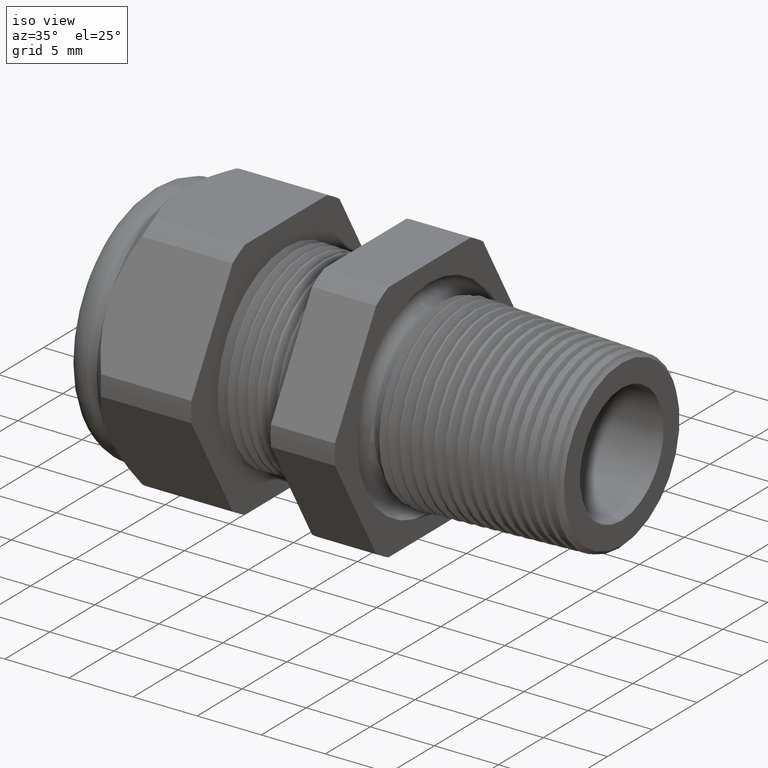
[diagram: clean part render]
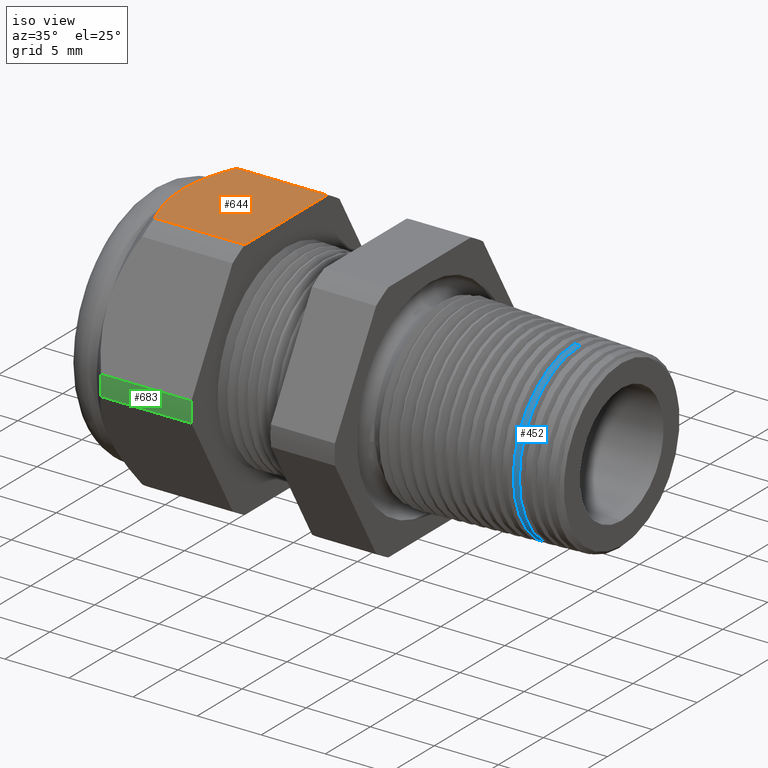
[diagram: same view with three faces highlighted in distinct colors, each labeled with its STEP entity id]
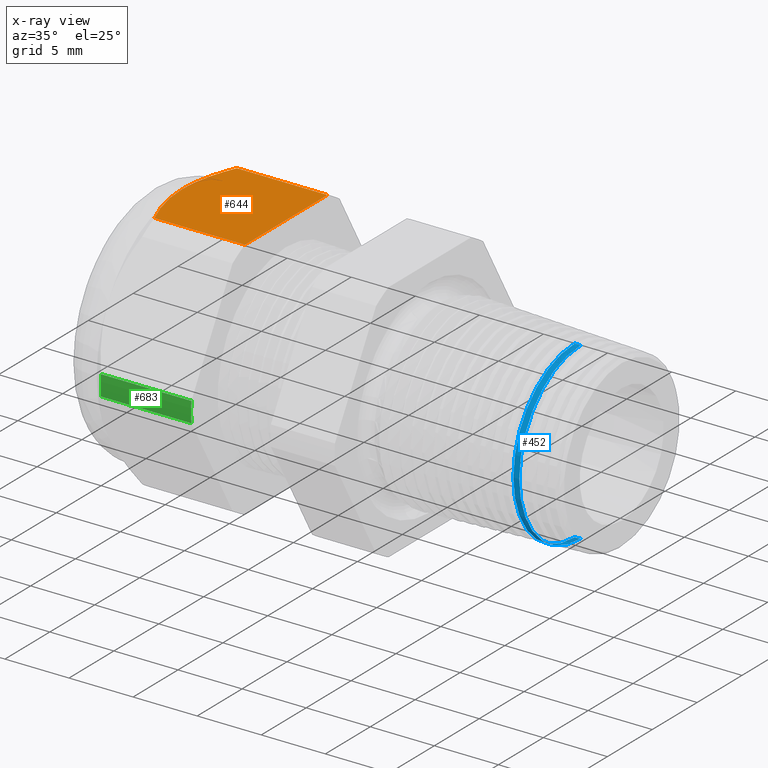
[diagram: x-ray of the same camera — body ghosted, the three highlighted faces saturated]
A machine part, iso view with three faces highlighted in distinct colors.
The next image is the same camera in x-ray (body ghosted, the three faces saturated) — at least one of them is partly hidden behind the body in this view.
Their STEP definitions:

[orange] entity #644 — the highlighted planar face has unit normal (0, 0, 1).
#7 = VERTEX_POINT ( 'NONE', #1895 ) ;
#622 = ORIENTED_EDGE ( 'NONE', *, *, #623, .T. ) ;
#623 = EDGE_CURVE ( 'NONE', #7, #624, #3085, .T. ) ;
#624 = VERTEX_POINT ( 'NONE', #3084 ) ;
#625 = ORIENTED_EDGE ( 'NONE', *, *, #626, .F. ) ;
#626 = EDGE_CURVE ( 'NONE', #627, #624, #3134, .T. ) ;
#627 = VERTEX_POINT ( 'NONE', #3130 ) ;
#628 = ORIENTED_EDGE ( 'NONE', *, *, #629, .F. ) ;
#629 = EDGE_CURVE ( 'NONE', #641, #627, #3129, .T. ) ;
#638 = VERTEX_POINT ( 'NONE', #3108 ) ;
#640 = EDGE_CURVE ( 'NONE', #641, #638, #3168, .T. ) ;
#641 = VERTEX_POINT ( 'NONE', #3164 ) ;
#644 = ADVANCED_FACE ( 'NONE', ( #3158 ), #3157, .T. ) ;
#645 = EDGE_LOOP ( 'NONE', ( #646, #647, #622, #625, #628 ) ) ;
#646 = ORIENTED_EDGE ( 'NONE', *, *, #640, .T. ) ;
#647 = ORIENTED_EDGE ( 'NONE', *, *, #648, .T. ) ;
#648 = EDGE_CURVE ( 'NONE', #638, #7, #3152, .T. ) ;
#1895 = CARTESIAN_POINT ( 'NONE',  ( -1.069763779527559200, 0.0000000000000000000, 0.3749999999999999400 ) ) ;
#3084 = CARTESIAN_POINT ( 'NONE',  ( -1.028513779527559200, -0.1806628420566886700, 0.3749999999999999400 ) ) ;
#3085 = B_SPLINE_CURVE_WITH_KNOTS ( 'NONE', 3,
 ( #3140, #3139, #3138, #3137, #3136, #3135 ),
 .UNSPECIFIED., .F., .F.,
 ( 4, 2, 4 ),
 ( 0.01191928708821687900, 0.01426783552382355200, 0.01661638395943022500 ),
 .UNSPECIFIED. ) ;
#3108 = CARTESIAN_POINT ( 'NONE',  ( -1.028513779527559200, 0.1806628420566886700, 0.3749999999999999400 ) ) ;
#3126 = DIRECTION ( 'NONE',  ( 0.0000000000000000000, -1.000000000000000000, 0.0000000000000000000 ) ) ;
#3127 = VECTOR ( 'NONE', #3126, 39.37007874015748100 ) ;
#3128 = CARTESIAN_POINT ( 'NONE',  ( -0.7508661417322833900, 0.2999999999999999900, 0.3749999999999999400 ) ) ;
#3129 = LINE ( 'NONE', #3128, #3127 ) ;
#3130 = CARTESIAN_POINT ( 'NONE',  ( -0.7508661417322833900, -0.1806628420566886700, 0.3749999999999999400 ) ) ;
#3131 = DIRECTION ( 'NONE',  ( -1.000000000000000000, 0.0000000000000000000, 0.0000000000000000000 ) ) ;
#3132 = VECTOR ( 'NONE', #3131, 39.37007874015748100 ) ;
#3133 = CARTESIAN_POINT ( 'NONE',  ( 0.2800000000000000300, -0.1806628420566886700, 0.3749999999999999400 ) ) ;
#3134 = LINE ( 'NONE', #3133, #3132 ) ;
#3135 = CARTESIAN_POINT ( 'NONE',  ( -1.028513779527559200, -0.1806628420566886700, 0.3749999999999999400 ) ) ;
#3136 = CARTESIAN_POINT ( 'NONE',  ( -1.040864619919063900, -0.1522063135617434400, 0.3749999999999998900 ) ) ;
#3137 = CARTESIAN_POINT ( 'NONE',  ( -1.051374803848830600, -0.1224209746056500500, 0.3750000000000001100 ) ) ;
#3138 = CARTESIAN_POINT ( 'NONE',  ( -1.065781561248279700, -0.06212512060126275400, 0.3750000000000000600 ) ) ;
#3139 = CARTESIAN_POINT ( 'NONE',  ( -1.069763779527559200, -0.03141195411055334300, 0.3750000000000000600 ) ) ;
#3140 = CARTESIAN_POINT ( 'NONE',  ( -1.069763779527559200, 0.0000000000000000000, 0.3749999999999999400 ) ) ;
#3142 = CARTESIAN_POINT ( 'NONE',  ( -1.069763779527559200, 0.0000000000000000000, 0.3749999999999999400 ) ) ;
#3143 = CARTESIAN_POINT ( 'NONE',  ( -1.069763779527559200, 0.01568637131276644200, 0.3749999999999999400 ) ) ;
#3144 = CARTESIAN_POINT ( 'NONE',  ( -1.068769479952294000, 0.03130286613836864900, 0.3749999999999999400 ) ) ;
#3145 = CARTESIAN_POINT ( 'NONE',  ( -1.064967165678735200, 0.06207756443688124800, 0.3749999999999999400 ) ) ;
#3146 = CARTESIAN_POINT ( 'NONE',  ( -1.062160678549065400, 0.07729185397029274300, 0.3749999999999999400 ) ) ;
#3147 = CARTESIAN_POINT ( 'NONE',  ( -1.051355067212263600, 0.1224785947535364200, 0.3749999999999998300 ) ) ;
#3148 = CARTESIAN_POINT ( 'NONE',  ( -1.040859887633265100, 0.1522172168218790500, 0.3749999999999998900 ) ) ;
#3149 = CARTESIAN_POINT ( 'NONE',  ( -1.028513779527559200, 0.1806628420566886700, 0.3749999999999999400 ) ) ;
#3152 = B_SPLINE_CURVE_WITH_KNOTS ( 'NONE', 3,
 ( #3149, #3148, #3147, #3146, #3145, #3144, #3143, #3142 ),
 .UNSPECIFIED., .F., .F.,
 ( 4, 2, 2, 4 ),
 ( 0.007228053594460295100, 0.009573670341338587000, 0.01074647871477773400, 0.01191928708821687900 ),
 .UNSPECIFIED. ) ;
#3153 = DIRECTION ( 'NONE',  ( 1.000000000000000000, 0.0000000000000000000, 0.0000000000000000000 ) ) ;
#3154 = DIRECTION ( 'NONE',  ( 0.0000000000000000000, 0.0000000000000000000, 1.000000000000000000 ) ) ;
#3155 = CARTESIAN_POINT ( 'NONE',  ( 0.2800000000000000300, -0.1806628420566887000, 0.3749999999999999400 ) ) ;
#3156 = AXIS2_PLACEMENT_3D ( 'NONE', #3155, #3154, #3153 ) ;
#3157 = PLANE ( 'NONE',  #3156 ) ;
#3158 = FACE_OUTER_BOUND ( 'NONE', #645, .T. ) ;
#3164 = CARTESIAN_POINT ( 'NONE',  ( -0.7508661417322833900, 0.1806628420566887000, 0.3749999999999999400 ) ) ;
#3165 = DIRECTION ( 'NONE',  ( -1.000000000000000000, 0.0000000000000000000, 0.0000000000000000000 ) ) ;
#3166 = VECTOR ( 'NONE', #3165, 39.37007874015748100 ) ;
#3167 = CARTESIAN_POINT ( 'NONE',  ( 0.2800000000000000300, 0.1806628420566887000, 0.3749999999999999400 ) ) ;
#3168 = LINE ( 'NONE', #3167, #3166 ) ;

[blue] entity #452 — the highlighted conical surface has half-angle 2 deg.
#391 = EDGE_CURVE ( 'NONE', #1833, #1873, #2674, .T. ) ;
#394 = EDGE_CURVE ( 'NONE', #1842, #1329, #2670, .T. ) ;
#429 = ORIENTED_EDGE ( 'NONE', *, *, #391, .F. ) ;
#430 = ORIENTED_EDGE ( 'NONE', *, *, #431, .F. ) ;
#431 = EDGE_CURVE ( 'NONE', #1842, #1833, #2725, .T. ) ;
#432 = ORIENTED_EDGE ( 'NONE', *, *, #394, .T. ) ;
#433 = ORIENTED_EDGE ( 'NONE', *, *, #434, .F. ) ;
#434 = EDGE_CURVE ( 'NONE', #1873, #1329, #2721, .T. ) ;
#452 = ADVANCED_FACE ( 'NONE', ( #2748 ), #2747, .T. ) ;
#453 = EDGE_LOOP ( 'NONE', ( #429, #430, #432, #433 ) ) ;
#1329 = VERTEX_POINT ( 'NONE', #4244 ) ;
#1833 = VERTEX_POINT ( 'NONE', #5109 ) ;
#1842 = VERTEX_POINT ( 'NONE', #5153 ) ;
#1873 = VERTEX_POINT ( 'NONE', #5223 ) ;
#2667 = DIRECTION ( 'NONE',  ( -0.9993908270190959800, 0.0000000000000000000, 0.03489949670249371100 ) ) ;
#2668 = VECTOR ( 'NONE', #2667, 39.37007874015748100 ) ;
#2669 = CARTESIAN_POINT ( 'NONE',  ( 0.2799999999999999700, 0.0000000000000000000, 0.2640013610877269800 ) ) ;
#2670 = LINE ( 'NONE', #2669, #2668 ) ;
#2671 = DIRECTION ( 'NONE',  ( -0.9993908270190959800, 4.273955692856252800E-018, -0.03489949670249371100 ) ) ;
#2672 = VECTOR ( 'NONE', #2671, 39.37007874015748100 ) ;
#2673 = CARTESIAN_POINT ( 'NONE',  ( 0.2799999999999999700, 3.233084218266294700E-017, -0.2640013610877269800 ) ) ;
#2674 = LINE ( 'NONE', #2673, #2672 ) ;
#2717 = DIRECTION ( 'NONE',  ( 0.0000000000000000000, 0.0000000000000000000, -1.000000000000000000 ) ) ;
#2718 = DIRECTION ( 'NONE',  ( -1.000000000000000000, 0.0000000000000000000, 0.0000000000000000000 ) ) ;
#2719 = CARTESIAN_POINT ( 'NONE',  ( 0.1356508413671558000, 0.0000000000000000000, 0.0000000000000000000 ) ) ;
#2720 = AXIS2_PLACEMENT_3D ( 'NONE', #2719, #2718, #2717 ) ;
#2721 = CIRCLE ( 'NONE', #2720, 0.2690421447826712400 ) ;
#2722 = DIRECTION ( 'NONE',  ( 0.0000000000000000000, 0.0000000000000000000, 1.000000000000000000 ) ) ;
#2723 = DIRECTION ( 'NONE',  ( 1.000000000000000000, 0.0000000000000000000, 0.0000000000000000000 ) ) ;
#2724 = AXIS2_PLACEMENT_3D ( 'NONE', #2730, #2723, #2722 ) ;
#2725 = CIRCLE ( 'NONE', #2724, 0.2684150621668731100 ) ;
#2730 = CARTESIAN_POINT ( 'NONE',  ( 0.1536081379824684700, 0.0000000000000000000, 0.0000000000000000000 ) ) ;
#2742 = DIRECTION ( 'NONE',  ( 0.0000000000000000000, 0.0000000000000000000, 1.000000000000000000 ) ) ;
#2743 = DIRECTION ( 'NONE',  ( -1.000000000000000000, 0.0000000000000000000, 0.0000000000000000000 ) ) ;
#2744 = CARTESIAN_POINT ( 'NONE',  ( 0.2799999999999999700, 0.0000000000000000000, 0.0000000000000000000 ) ) ;
#2745 = AXIS2_PLACEMENT_3D ( 'NONE', #2744, #2743, #2742 ) ;
#2747 = CONICAL_SURFACE ( 'NONE', #2745, 0.2640013610877269800, 0.03490658503987932600 ) ;
#2748 = FACE_OUTER_BOUND ( 'NONE', #453, .T. ) ;
#4244 = CARTESIAN_POINT ( 'NONE',  ( 0.1356508413671558000, 0.0000000000000000000, 0.2690421447826712400 ) ) ;
#5109 = CARTESIAN_POINT ( 'NONE',  ( 0.1536081379824684700, 3.290976240847180400E-017, -0.2684150621668731100 ) ) ;
#5153 = CARTESIAN_POINT ( 'NONE',  ( 0.1536081379824684700, 0.0000000000000000000, 0.2684150621668731100 ) ) ;
#5223 = CARTESIAN_POINT ( 'NONE',  ( 0.1356508413671558000, 3.294816014438371700E-017, -0.2690421447826712400 ) ) ;

[green] entity #683 — the highlighted cylindrical surface (partial cylindrical patch) has radius 10.5727 mm, axis along (-1, 0, 0).
#621 = VERTEX_POINT ( 'NONE', #3092 ) ;
#664 = ORIENTED_EDGE ( 'NONE', *, *, #665, .F. ) ;
#665 = EDGE_CURVE ( 'NONE', #680, #691, #3212, .T. ) ;
#679 = EDGE_CURVE ( 'NONE', #680, #621, #3238, .T. ) ;
#680 = VERTEX_POINT ( 'NONE', #3234 ) ;
#683 = ADVANCED_FACE ( 'NONE', ( #3229 ), #3228, .T. ) ;
#684 = EDGE_LOOP ( 'NONE', ( #685, #686, #689, #664 ) ) ;
#685 = ORIENTED_EDGE ( 'NONE', *, *, #679, .T. ) ;
#686 = ORIENTED_EDGE ( 'NONE', *, *, #687, .T. ) ;
#687 = EDGE_CURVE ( 'NONE', #621, #688, #3227, .T. ) ;
#688 = VERTEX_POINT ( 'NONE', #3282 ) ;
#689 = ORIENTED_EDGE ( 'NONE', *, *, #690, .F. ) ;
#690 = EDGE_CURVE ( 'NONE', #691, #688, #3281, .T. ) ;
#691 = VERTEX_POINT ( 'NONE', #3277 ) ;
#3092 = CARTESIAN_POINT ( 'NONE',  ( -1.028513779527559200, -0.4150909474475088000, 0.03104138925901241800 ) ) ;
#3208 = DIRECTION ( 'NONE',  ( 0.0000000000000000000, 0.0000000000000000000, -1.000000000000000000 ) ) ;
#3209 = DIRECTION ( 'NONE',  ( 1.000000000000000000, 0.0000000000000000000, 0.0000000000000000000 ) ) ;
#3210 = CARTESIAN_POINT ( 'NONE',  ( -0.7508661417322833900, 0.0000000000000000000, 0.0000000000000000000 ) ) ;
#3211 = AXIS2_PLACEMENT_3D ( 'NONE', #3210, #3209, #3208 ) ;
#3212 = CIRCLE ( 'NONE', #3211, 0.4162500000000000100 ) ;
#3224 = DIRECTION ( 'NONE',  ( -1.000000000000000000, 0.0000000000000000000, 0.0000000000000000000 ) ) ;
#3225 = CARTESIAN_POINT ( 'NONE',  ( 0.2800000000000000300, 0.0000000000000000000, 0.0000000000000000000 ) ) ;
#3226 = AXIS2_PLACEMENT_3D ( 'NONE', #3225, #3224, #3287 ) ;
#3227 = CIRCLE ( 'NONE', #3286, 0.4162500000000000100 ) ;
#3228 = CYLINDRICAL_SURFACE ( 'NONE', #3226, 0.4162500000000000100 ) ;
#3229 = FACE_OUTER_BOUND ( 'NONE', #684, .T. ) ;
#3234 = CARTESIAN_POINT ( 'NONE',  ( -0.7508661417322833900, -0.4150909474475088000, 0.03104138925901241800 ) ) ;
#3235 = DIRECTION ( 'NONE',  ( -1.000000000000000000, 0.0000000000000000000, 0.0000000000000000000 ) ) ;
#3236 = VECTOR ( 'NONE', #3235, 39.37007874015748100 ) ;
#3237 = CARTESIAN_POINT ( 'NONE',  ( 0.2800000000000000300, -0.4150909474475088000, 0.03104138925901241800 ) ) ;
#3238 = LINE ( 'NONE', #3237, #3236 ) ;
#3277 = CARTESIAN_POINT ( 'NONE',  ( -0.7508661417322833900, -0.4150909474475088000, -0.03104138925901237000 ) ) ;
#3278 = DIRECTION ( 'NONE',  ( -1.000000000000000000, 0.0000000000000000000, 0.0000000000000000000 ) ) ;
#3279 = VECTOR ( 'NONE', #3278, 39.37007874015748100 ) ;
#3280 = CARTESIAN_POINT ( 'NONE',  ( 0.2800000000000000300, -0.4150909474475088000, -0.03104138925901237000 ) ) ;
#3281 = LINE ( 'NONE', #3280, #3279 ) ;
#3282 = CARTESIAN_POINT ( 'NONE',  ( -1.028513779527559000, -0.4150909474475088000, -0.03104138925901241800 ) ) ;
#3283 = DIRECTION ( 'NONE',  ( 0.0000000000000000000, 0.0000000000000000000, -1.000000000000000000 ) ) ;
#3284 = DIRECTION ( 'NONE',  ( 1.000000000000000000, 0.0000000000000000000, 0.0000000000000000000 ) ) ;
#3285 = CARTESIAN_POINT ( 'NONE',  ( -1.028513779527559200, 0.0000000000000000000, 0.0000000000000000000 ) ) ;
#3286 = AXIS2_PLACEMENT_3D ( 'NONE', #3285, #3284, #3283 ) ;
#3287 = DIRECTION ( 'NONE',  ( 0.0000000000000000000, 0.0000000000000000000, 1.000000000000000000 ) ) ;